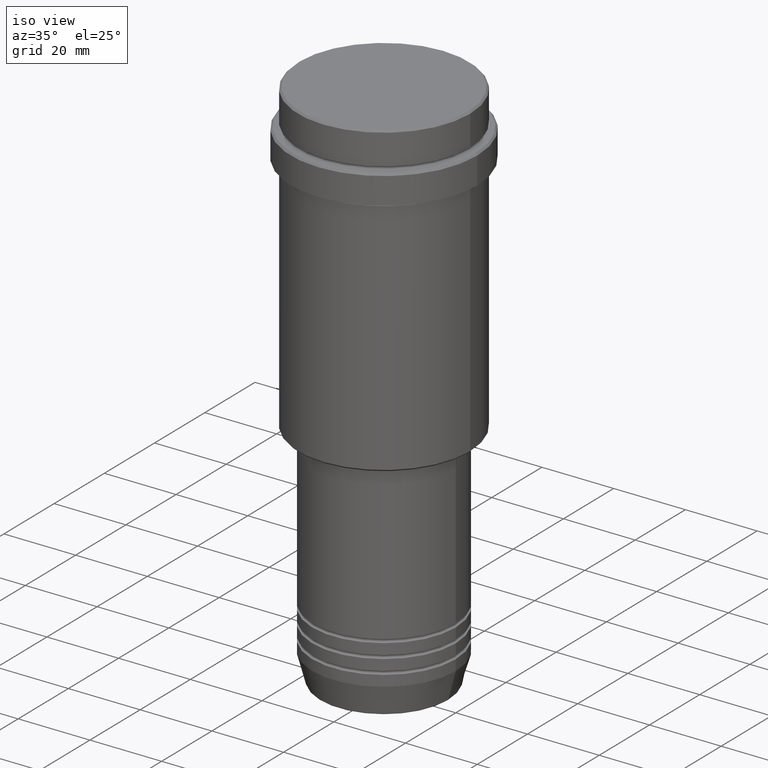
[diagram: clean part render]
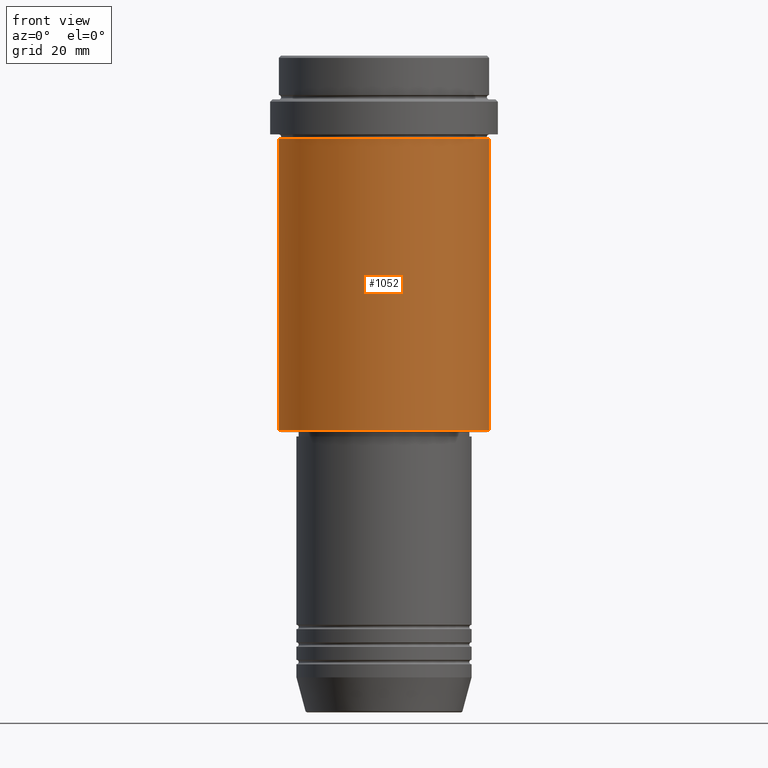
[diagram: tour spotlight — one face highlighted and labeled with its STEP entity id]
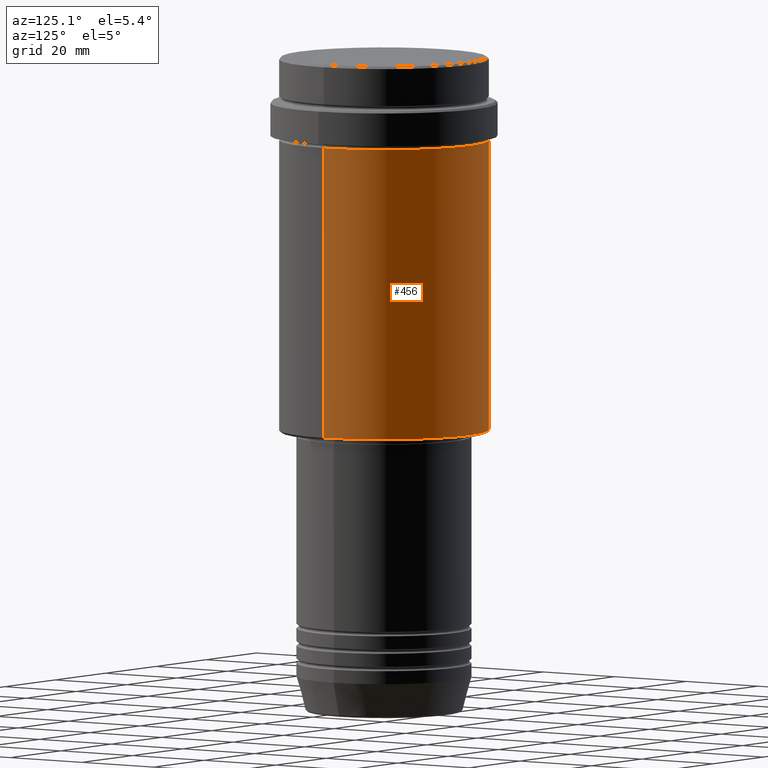
[diagram: tour spotlight — one face highlighted and labeled with its STEP entity id]
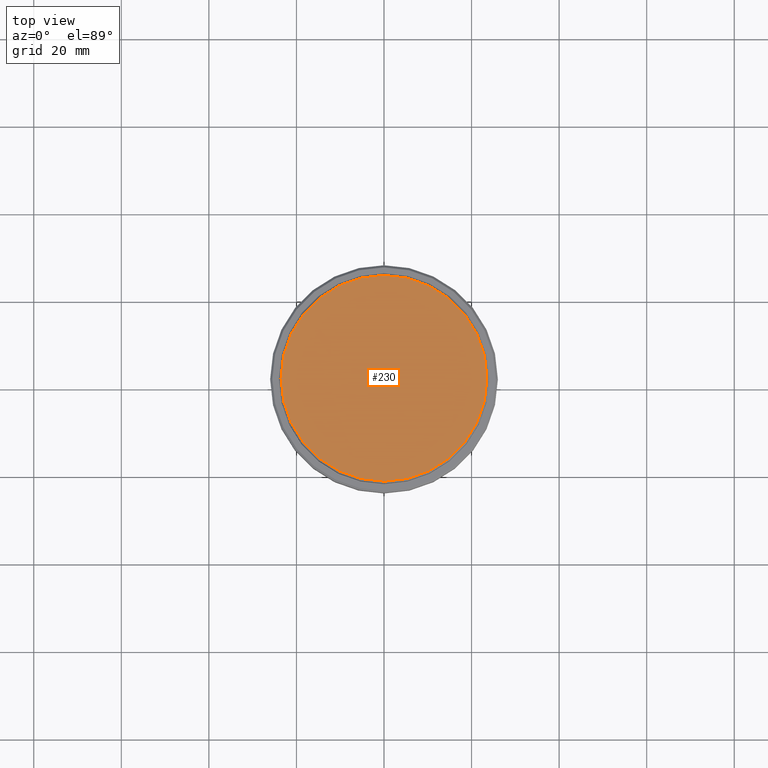
[diagram: tour spotlight — one face highlighted and labeled with its STEP entity id]
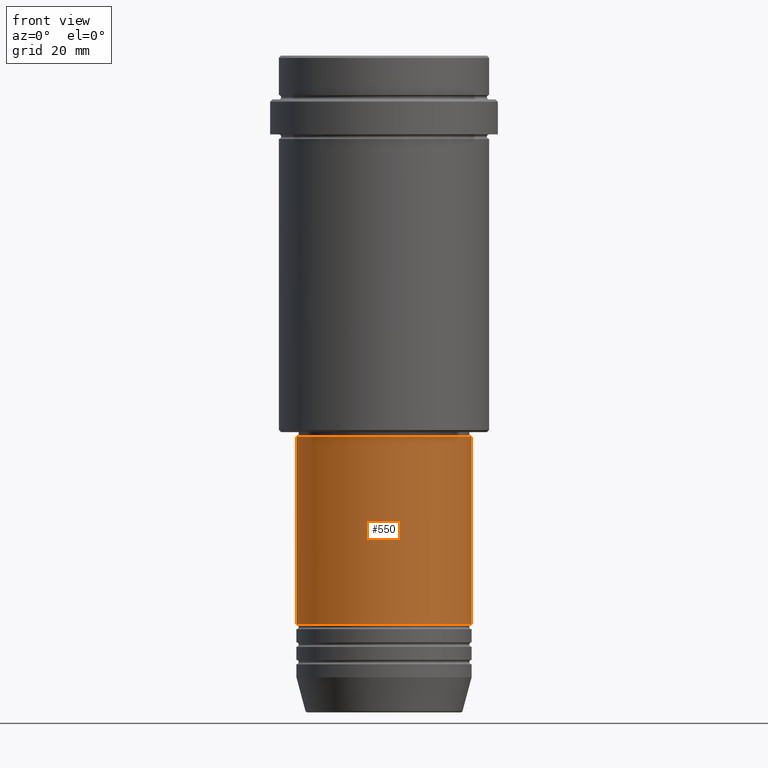
[diagram: tour spotlight — one face highlighted and labeled with its STEP entity id]
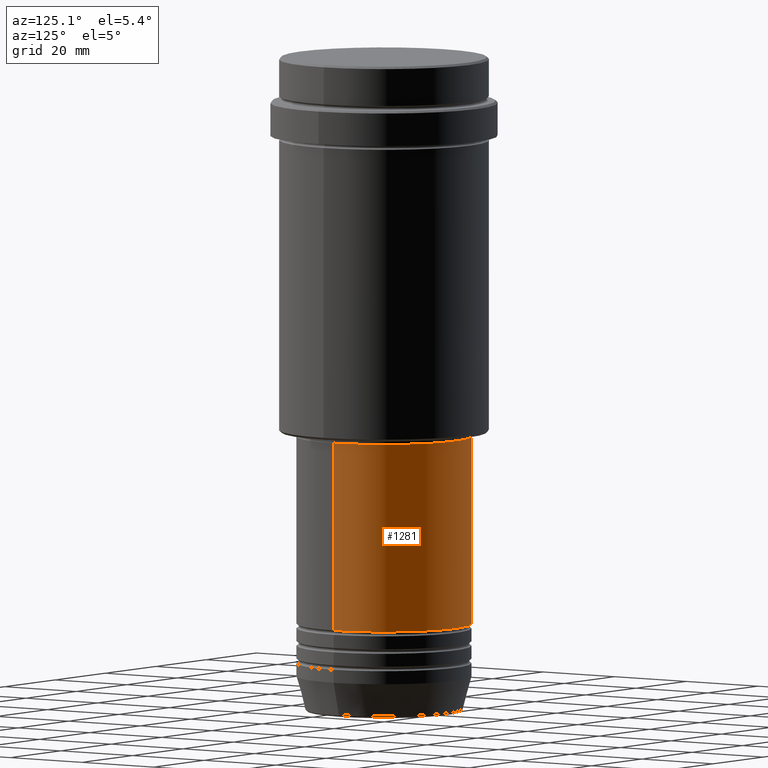
[diagram: tour spotlight — one face highlighted and labeled with its STEP entity id]
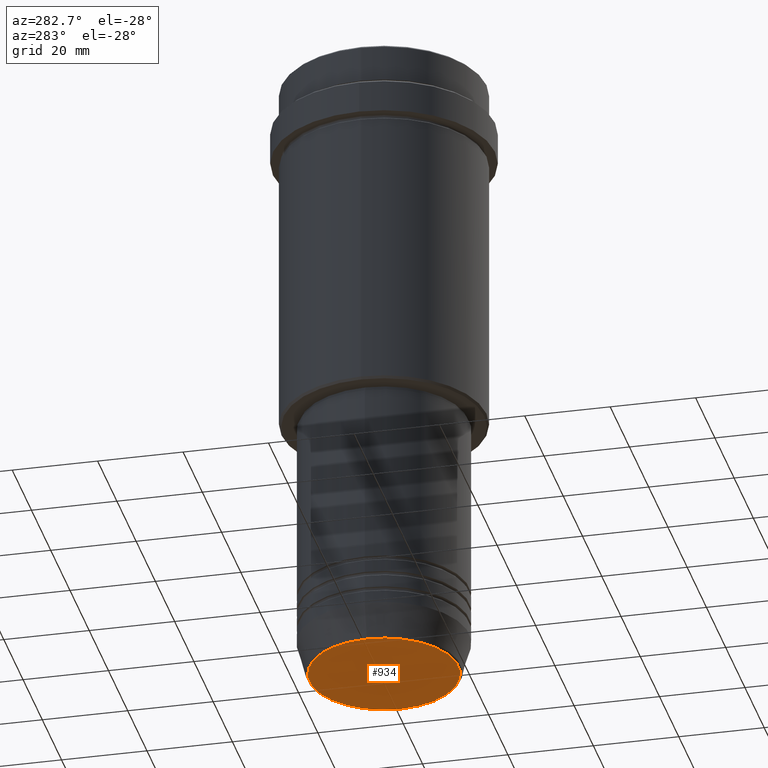
[diagram: tour spotlight — one face highlighted and labeled with its STEP entity id]
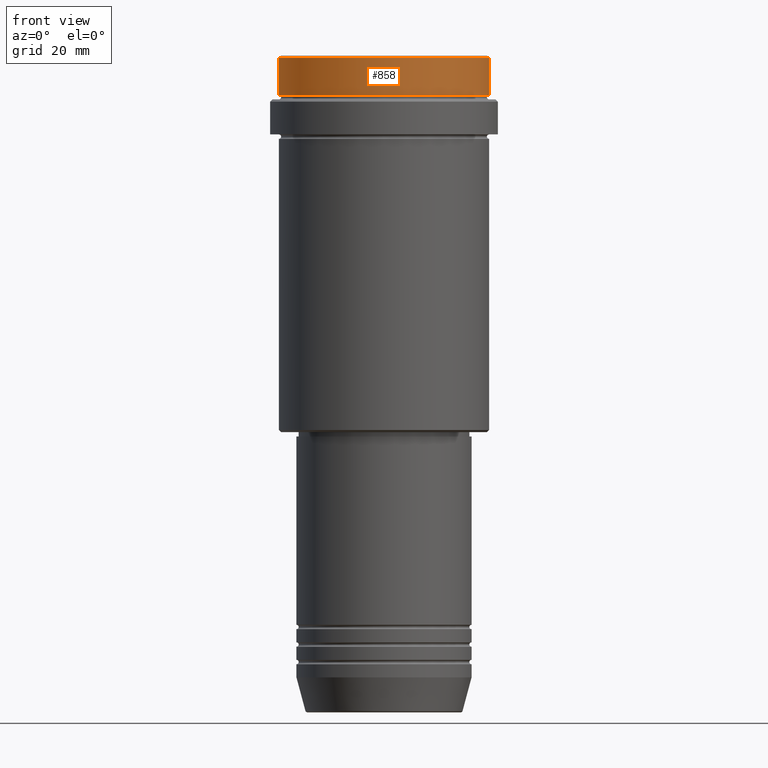
[diagram: tour spotlight — one face highlighted and labeled with its STEP entity id]
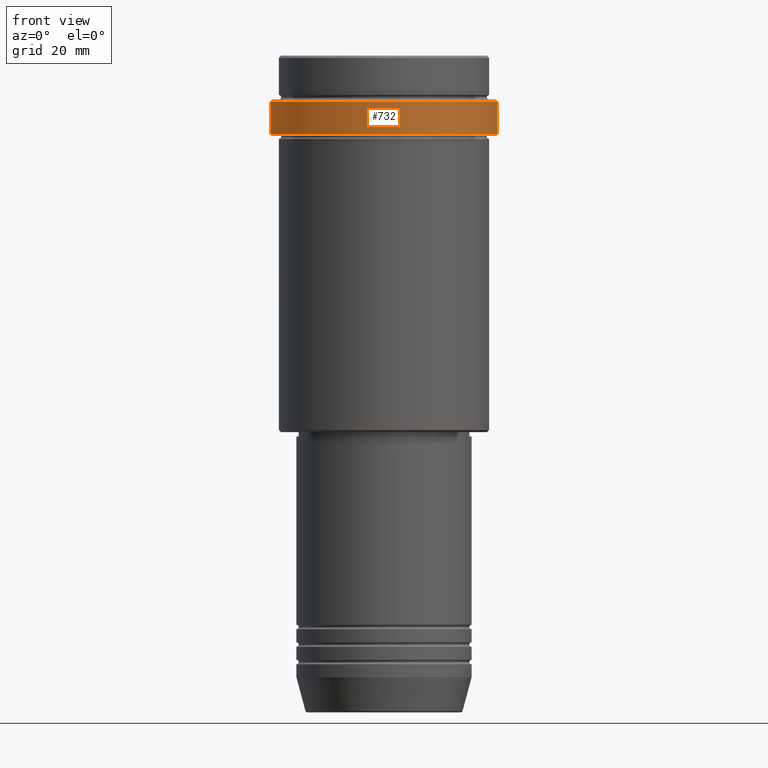
[diagram: tour spotlight — one face highlighted and labeled with its STEP entity id]
A machine part: a face-by-face anatomy tour. The part has 52 B-rep faces; the first image is the clean iso view, then the 8 largest visible faces are spotlighted one at a time (largest first), each with its STEP entity span.

Face 1 — front view, entity #1052. In plain terms, the highlighted cylindrical surface (partial cylindrical patch) has radius 24 mm, axis along (-0, -0, 1).
Definition (entity closure, byte-faithful):
#49 = ORIENTED_EDGE ( 'NONE', *, *, #285, .F. ) ;
#51 = EDGE_CURVE ( 'NONE', #517, #610, #1229, .T. ) ;
#53 = DIRECTION ( 'NONE',  ( -0.000000000000000000, -0.000000000000000000, 1.000000000000000000 ) ) ;
#66 = CARTESIAN_POINT ( 'NONE',  ( -23.99999999999999289, 2.939152317953647106E-15, -85.49999999999998579 ) ) ;
#92 = CYLINDRICAL_SURFACE ( 'NONE', #1135, 23.99999999999999289 ) ;
#104 = CARTESIAN_POINT ( 'NONE',  ( 0.000000000000000000, 0.000000000000000000, 0.000000000000000000 ) ) ;
#173 = CARTESIAN_POINT ( 'NONE',  ( -23.99999999999998579, 2.939152317953646711E-15, -19.00000000000000711 ) ) ;
#201 = DIRECTION ( 'NONE',  ( -0.000000000000000000, -0.000000000000000000, 1.000000000000000000 ) ) ;
#234 = VERTEX_POINT ( 'NONE', #66 ) ;
#285 = EDGE_CURVE ( 'NONE', #234, #517, #1355, .T. ) ;
#294 = DIRECTION ( 'NONE',  ( 1.000000000000000000, 0.000000000000000000, 0.000000000000000000 ) ) ;
#304 = DIRECTION ( 'NONE',  ( -0.000000000000000000, -0.000000000000000000, 1.000000000000000000 ) ) ;
#305 = CARTESIAN_POINT ( 'NONE',  ( 23.99999999999998579, 0.000000000000000000, -19.00000000000000711 ) ) ;
#383 = CARTESIAN_POINT ( 'NONE',  ( -23.99999999999999289, 2.939152317953647106E-15, 0.000000000000000000 ) ) ;
#388 = EDGE_LOOP ( 'NONE', ( #49, #775, #1156, #1292 ) ) ;
#440 = DIRECTION ( 'NONE',  ( -1.000000000000000000, 0.000000000000000000, 0.000000000000000000 ) ) ;
#479 = VECTOR ( 'NONE', #813, 1000.000000000000000 ) ;
#517 = VERTEX_POINT ( 'NONE', #173 ) ;
#610 = VERTEX_POINT ( 'NONE', #305 ) ;
#618 = AXIS2_PLACEMENT_3D ( 'NONE', #1266, #304, #294 ) ;
#621 = AXIS2_PLACEMENT_3D ( 'NONE', #897, #1330, #440 ) ;
#661 = CARTESIAN_POINT ( 'NONE',  ( 23.99999999999999289, 0.000000000000000000, 0.000000000000000000 ) ) ;
#700 = VECTOR ( 'NONE', #53, 1000.000000000000000 ) ;
#758 = FACE_OUTER_BOUND ( 'NONE', #388, .T. ) ;
#775 = ORIENTED_EDGE ( 'NONE', *, *, #1343, .T. ) ;
#813 = DIRECTION ( 'NONE',  ( -0.000000000000000000, -0.000000000000000000, 1.000000000000000000 ) ) ;
#897 = CARTESIAN_POINT ( 'NONE',  ( 0.000000000000000000, 0.000000000000000000, -85.49999999999998579 ) ) ;
#1000 = CARTESIAN_POINT ( 'NONE',  ( 23.99999999999999289, 0.000000000000000000, -85.49999999999998579 ) ) ;
#1039 = LINE ( 'NONE', #661, #700 ) ;
#1052 = ADVANCED_FACE ( 'NONE', ( #758 ), #92, .T. ) ;
#1064 = VERTEX_POINT ( 'NONE', #1000 ) ;
#1131 = EDGE_CURVE ( 'NONE', #1064, #610, #1039, .T. ) ;
#1135 = AXIS2_PLACEMENT_3D ( 'NONE', #104, #201, #1199 ) ;
#1156 = ORIENTED_EDGE ( 'NONE', *, *, #1131, .T. ) ;
#1199 = DIRECTION ( 'NONE',  ( 1.000000000000000000, 0.000000000000000000, 0.000000000000000000 ) ) ;
#1229 = CIRCLE ( 'NONE', #618, 23.99999999999998579 ) ;
#1232 = CIRCLE ( 'NONE', #621, 23.99999999999999289 ) ;
#1266 = CARTESIAN_POINT ( 'NONE',  ( 0.000000000000000000, 0.000000000000000000, -19.00000000000000711 ) ) ;
#1292 = ORIENTED_EDGE ( 'NONE', *, *, #51, .F. ) ;
#1330 = DIRECTION ( 'NONE',  ( -0.000000000000000000, -0.000000000000000000, 1.000000000000000000 ) ) ;
#1343 = EDGE_CURVE ( 'NONE', #234, #1064, #1232, .T. ) ;
#1355 = LINE ( 'NONE', #383, #479 ) ;

Face 2 — auxiliary view, entity #456. In plain terms, the highlighted cylindrical surface (partial cylindrical patch) has radius 24 mm, axis along (-0, -0, 1).
Definition (entity closure, byte-faithful):
#53 = DIRECTION ( 'NONE',  ( -0.000000000000000000, -0.000000000000000000, 1.000000000000000000 ) ) ;
#66 = CARTESIAN_POINT ( 'NONE',  ( -23.99999999999999289, 2.939152317953647106E-15, -85.49999999999998579 ) ) ;
#82 = DIRECTION ( 'NONE',  ( -0.000000000000000000, -0.000000000000000000, 1.000000000000000000 ) ) ;
#128 = DIRECTION ( 'NONE',  ( -0.000000000000000000, -0.000000000000000000, 1.000000000000000000 ) ) ;
#173 = CARTESIAN_POINT ( 'NONE',  ( -23.99999999999998579, 2.939152317953646711E-15, -19.00000000000000711 ) ) ;
#195 = ORIENTED_EDGE ( 'NONE', *, *, #285, .T. ) ;
#212 = CIRCLE ( 'NONE', #872, 23.99999999999999289 ) ;
#234 = VERTEX_POINT ( 'NONE', #66 ) ;
#285 = EDGE_CURVE ( 'NONE', #234, #517, #1355, .T. ) ;
#305 = CARTESIAN_POINT ( 'NONE',  ( 23.99999999999998579, 0.000000000000000000, -19.00000000000000711 ) ) ;
#307 = CARTESIAN_POINT ( 'NONE',  ( 0.000000000000000000, 0.000000000000000000, -85.49999999999998579 ) ) ;
#316 = DIRECTION ( 'NONE',  ( -0.000000000000000000, -0.000000000000000000, 1.000000000000000000 ) ) ;
#344 = ORIENTED_EDGE ( 'NONE', *, *, #977, .T. ) ;
#367 = CARTESIAN_POINT ( 'NONE',  ( 0.000000000000000000, 0.000000000000000000, 0.000000000000000000 ) ) ;
#383 = CARTESIAN_POINT ( 'NONE',  ( -23.99999999999999289, 2.939152317953647106E-15, 0.000000000000000000 ) ) ;
#413 = ORIENTED_EDGE ( 'NONE', *, *, #1131, .F. ) ;
#456 = ADVANCED_FACE ( 'NONE', ( #1018 ), #1128, .T. ) ;
#458 = DIRECTION ( 'NONE',  ( 1.000000000000000000, 0.000000000000000000, 0.000000000000000000 ) ) ;
#479 = VECTOR ( 'NONE', #813, 1000.000000000000000 ) ;
#517 = VERTEX_POINT ( 'NONE', #173 ) ;
#610 = VERTEX_POINT ( 'NONE', #305 ) ;
#628 = DIRECTION ( 'NONE',  ( 1.000000000000000000, 0.000000000000000000, 0.000000000000000000 ) ) ;
#661 = CARTESIAN_POINT ( 'NONE',  ( 23.99999999999999289, 0.000000000000000000, 0.000000000000000000 ) ) ;
#700 = VECTOR ( 'NONE', #53, 1000.000000000000000 ) ;
#743 = DIRECTION ( 'NONE',  ( -1.000000000000000000, 0.000000000000000000, 0.000000000000000000 ) ) ;
#761 = EDGE_LOOP ( 'NONE', ( #344, #195, #1022, #413 ) ) ;
#791 = CARTESIAN_POINT ( 'NONE',  ( 0.000000000000000000, 0.000000000000000000, -19.00000000000000711 ) ) ;
#813 = DIRECTION ( 'NONE',  ( -0.000000000000000000, -0.000000000000000000, 1.000000000000000000 ) ) ;
#872 = AXIS2_PLACEMENT_3D ( 'NONE', #307, #316, #743 ) ;
#977 = EDGE_CURVE ( 'NONE', #1064, #234, #212, .T. ) ;
#1000 = CARTESIAN_POINT ( 'NONE',  ( 23.99999999999999289, 0.000000000000000000, -85.49999999999998579 ) ) ;
#1009 = AXIS2_PLACEMENT_3D ( 'NONE', #791, #82, #628 ) ;
#1018 = FACE_OUTER_BOUND ( 'NONE', #761, .T. ) ;
#1022 = ORIENTED_EDGE ( 'NONE', *, *, #1387, .F. ) ;
#1039 = LINE ( 'NONE', #661, #700 ) ;
#1064 = VERTEX_POINT ( 'NONE', #1000 ) ;
#1128 = CYLINDRICAL_SURFACE ( 'NONE', #1363, 23.99999999999999289 ) ;
#1131 = EDGE_CURVE ( 'NONE', #1064, #610, #1039, .T. ) ;
#1355 = LINE ( 'NONE', #383, #479 ) ;
#1363 = AXIS2_PLACEMENT_3D ( 'NONE', #367, #128, #458 ) ;
#1387 = EDGE_CURVE ( 'NONE', #610, #517, #1414, .T. ) ;
#1414 = CIRCLE ( 'NONE', #1009, 23.99999999999998579 ) ;

Face 3 — top view, entity #230. In plain terms, the highlighted planar face has unit normal (0, -0, 1).
Definition (entity closure, byte-faithful):
#31 = EDGE_CURVE ( 'NONE', #692, #237, #572, .T. ) ;
#54 = PLANE ( 'NONE',  #300 ) ;
#77 = DIRECTION ( 'NONE',  ( 0.000000000000000000, -0.000000000000000000, 1.000000000000000000 ) ) ;
#138 = DIRECTION ( 'NONE',  ( -0.000000000000000000, -0.000000000000000000, 1.000000000000000000 ) ) ;
#151 = DIRECTION ( 'NONE',  ( 1.000000000000000000, 0.000000000000000000, 0.000000000000000000 ) ) ;
#192 = ORIENTED_EDGE ( 'NONE', *, *, #31, .T. ) ;
#230 = ADVANCED_FACE ( 'NONE', ( #809 ), #54, .T. ) ;
#237 = VERTEX_POINT ( 'NONE', #587 ) ;
#300 = AXIS2_PLACEMENT_3D ( 'NONE', #712, #77, #612 ) ;
#371 = CARTESIAN_POINT ( 'NONE',  ( 0.000000000000000000, 0.000000000000000000, 0.000000000000000000 ) ) ;
#572 = CIRCLE ( 'NONE', #1300, 23.49999999999996447 ) ;
#587 = CARTESIAN_POINT ( 'NONE',  ( 23.49999999999996447, 2.908536147974961346E-15, 0.000000000000000000 ) ) ;
#612 = DIRECTION ( 'NONE',  ( 1.000000000000000000, 0.000000000000000000, 0.000000000000000000 ) ) ;
#623 = CIRCLE ( 'NONE', #846, 23.49999999999996447 ) ;
#650 = EDGE_CURVE ( 'NONE', #237, #692, #623, .T. ) ;
#692 = VERTEX_POINT ( 'NONE', #1352 ) ;
#712 = CARTESIAN_POINT ( 'NONE',  ( 0.000000000000000000, 0.000000000000000000, 0.000000000000000000 ) ) ;
#809 = FACE_OUTER_BOUND ( 'NONE', #1332, .T. ) ;
#828 = ORIENTED_EDGE ( 'NONE', *, *, #650, .T. ) ;
#846 = AXIS2_PLACEMENT_3D ( 'NONE', #371, #138, #151 ) ;
#927 = CARTESIAN_POINT ( 'NONE',  ( 0.000000000000000000, 0.000000000000000000, 0.000000000000000000 ) ) ;
#1243 = DIRECTION ( 'NONE',  ( 1.000000000000000000, 0.000000000000000000, 0.000000000000000000 ) ) ;
#1300 = AXIS2_PLACEMENT_3D ( 'NONE', #927, #1357, #1243 ) ;
#1332 = EDGE_LOOP ( 'NONE', ( #192, #828 ) ) ;
#1352 = CARTESIAN_POINT ( 'NONE',  ( -23.49999999999996447, 0.000000000000000000, 0.000000000000000000 ) ) ;
#1357 = DIRECTION ( 'NONE',  ( -0.000000000000000000, -0.000000000000000000, 1.000000000000000000 ) ) ;

Face 4 — front view, entity #550. In plain terms, the highlighted cylindrical surface (partial cylindrical patch) has radius 20 mm, axis along (-0, -0, 1).
Definition (entity closure, byte-faithful):
#20 = AXIS2_PLACEMENT_3D ( 'NONE', #890, #1217, #571 ) ;
#35 = CARTESIAN_POINT ( 'NONE',  ( -20.00000000000000000, 2.449293598294706513E-15, -129.9999999999998863 ) ) ;
#56 = ORIENTED_EDGE ( 'NONE', *, *, #182, .F. ) ;
#59 = VERTEX_POINT ( 'NONE', #1048 ) ;
#69 = DIRECTION ( 'NONE',  ( -0.000000000000000000, -0.000000000000000000, 1.000000000000000000 ) ) ;
#142 = CARTESIAN_POINT ( 'NONE',  ( 0.000000000000000000, 0.000000000000000000, -129.9999999999998863 ) ) ;
#167 = CARTESIAN_POINT ( 'NONE',  ( -20.00000000000000000, 2.449293598294706513E-15, 0.000000000000000000 ) ) ;
#181 = ORIENTED_EDGE ( 'NONE', *, *, #545, .F. ) ;
#182 = EDGE_CURVE ( 'NONE', #59, #1373, #1051, .T. ) ;
#228 = ORIENTED_EDGE ( 'NONE', *, *, #711, .T. ) ;
#249 = VERTEX_POINT ( 'NONE', #624 ) ;
#272 = FACE_OUTER_BOUND ( 'NONE', #964, .T. ) ;
#308 = EDGE_CURVE ( 'NONE', #1368, #249, #1276, .T. ) ;
#373 = VECTOR ( 'NONE', #1141, 1000.000000000000000 ) ;
#447 = DIRECTION ( 'NONE',  ( 1.000000000000000000, 0.000000000000000000, 0.000000000000000000 ) ) ;
#461 = VECTOR ( 'NONE', #1030, 1000.000000000000000 ) ;
#485 = CYLINDRICAL_SURFACE ( 'NONE', #1080, 20.00000000000000000 ) ;
#492 = LINE ( 'NONE', #939, #373 ) ;
#510 = DIRECTION ( 'NONE',  ( 1.000000000000000000, 0.000000000000000000, 0.000000000000000000 ) ) ;
#545 = EDGE_CURVE ( 'NONE', #1368, #59, #1138, .T. ) ;
#550 = ADVANCED_FACE ( 'NONE', ( #272 ), #485, .T. ) ;
#571 = DIRECTION ( 'NONE',  ( 1.000000000000000000, 0.000000000000000000, 0.000000000000000000 ) ) ;
#580 = DIRECTION ( 'NONE',  ( -0.000000000000000000, -0.000000000000000000, 1.000000000000000000 ) ) ;
#624 = CARTESIAN_POINT ( 'NONE',  ( 20.00000000000000000, 0.000000000000000000, -129.9999999999998863 ) ) ;
#652 = ORIENTED_EDGE ( 'NONE', *, *, #308, .T. ) ;
#711 = EDGE_CURVE ( 'NONE', #249, #1373, #492, .T. ) ;
#869 = AXIS2_PLACEMENT_3D ( 'NONE', #142, #580, #447 ) ;
#890 = CARTESIAN_POINT ( 'NONE',  ( 0.000000000000000000, 0.000000000000000000, -87.00000000000000000 ) ) ;
#939 = CARTESIAN_POINT ( 'NONE',  ( 20.00000000000000000, 0.000000000000000000, 0.000000000000000000 ) ) ;
#964 = EDGE_LOOP ( 'NONE', ( #181, #652, #228, #56 ) ) ;
#1030 = DIRECTION ( 'NONE',  ( -0.000000000000000000, -0.000000000000000000, 1.000000000000000000 ) ) ;
#1048 = CARTESIAN_POINT ( 'NONE',  ( -20.00000000000000000, 2.449293598294706513E-15, -87.00000000000000000 ) ) ;
#1051 = CIRCLE ( 'NONE', #20, 20.00000000000000000 ) ;
#1080 = AXIS2_PLACEMENT_3D ( 'NONE', #1251, #69, #510 ) ;
#1138 = LINE ( 'NONE', #167, #461 ) ;
#1141 = DIRECTION ( 'NONE',  ( -0.000000000000000000, -0.000000000000000000, 1.000000000000000000 ) ) ;
#1217 = DIRECTION ( 'NONE',  ( -0.000000000000000000, -0.000000000000000000, 1.000000000000000000 ) ) ;
#1220 = CARTESIAN_POINT ( 'NONE',  ( 20.00000000000000000, 0.000000000000000000, -87.00000000000000000 ) ) ;
#1251 = CARTESIAN_POINT ( 'NONE',  ( 0.000000000000000000, 0.000000000000000000, 0.000000000000000000 ) ) ;
#1276 = CIRCLE ( 'NONE', #869, 20.00000000000000000 ) ;
#1368 = VERTEX_POINT ( 'NONE', #35 ) ;
#1373 = VERTEX_POINT ( 'NONE', #1220 ) ;

Face 5 — auxiliary view, entity #1281. In plain terms, the highlighted cylindrical surface (partial cylindrical patch) has radius 20 mm, axis along (-0, -0, 1).
Definition (entity closure, byte-faithful):
#35 = CARTESIAN_POINT ( 'NONE',  ( -20.00000000000000000, 2.449293598294706513E-15, -129.9999999999998863 ) ) ;
#59 = VERTEX_POINT ( 'NONE', #1048 ) ;
#106 = EDGE_LOOP ( 'NONE', ( #446, #778, #549, #1350 ) ) ;
#162 = CIRCLE ( 'NONE', #1027, 20.00000000000000000 ) ;
#167 = CARTESIAN_POINT ( 'NONE',  ( -20.00000000000000000, 2.449293598294706513E-15, 0.000000000000000000 ) ) ;
#249 = VERTEX_POINT ( 'NONE', #624 ) ;
#292 = CYLINDRICAL_SURFACE ( 'NONE', #1360, 20.00000000000000000 ) ;
#314 = CARTESIAN_POINT ( 'NONE',  ( 0.000000000000000000, 0.000000000000000000, 0.000000000000000000 ) ) ;
#319 = CIRCLE ( 'NONE', #502, 20.00000000000000000 ) ;
#373 = VECTOR ( 'NONE', #1141, 1000.000000000000000 ) ;
#382 = DIRECTION ( 'NONE',  ( -0.000000000000000000, -0.000000000000000000, 1.000000000000000000 ) ) ;
#446 = ORIENTED_EDGE ( 'NONE', *, *, #1329, .T. ) ;
#461 = VECTOR ( 'NONE', #1030, 1000.000000000000000 ) ;
#487 = DIRECTION ( 'NONE',  ( 1.000000000000000000, 0.000000000000000000, 0.000000000000000000 ) ) ;
#492 = LINE ( 'NONE', #939, #373 ) ;
#502 = AXIS2_PLACEMENT_3D ( 'NONE', #1280, #986, #1195 ) ;
#503 = FACE_OUTER_BOUND ( 'NONE', #106, .T. ) ;
#522 = DIRECTION ( 'NONE',  ( 1.000000000000000000, 0.000000000000000000, 0.000000000000000000 ) ) ;
#545 = EDGE_CURVE ( 'NONE', #1368, #59, #1138, .T. ) ;
#549 = ORIENTED_EDGE ( 'NONE', *, *, #1142, .F. ) ;
#624 = CARTESIAN_POINT ( 'NONE',  ( 20.00000000000000000, 0.000000000000000000, -129.9999999999998863 ) ) ;
#711 = EDGE_CURVE ( 'NONE', #249, #1373, #492, .T. ) ;
#740 = DIRECTION ( 'NONE',  ( -0.000000000000000000, -0.000000000000000000, 1.000000000000000000 ) ) ;
#778 = ORIENTED_EDGE ( 'NONE', *, *, #545, .T. ) ;
#939 = CARTESIAN_POINT ( 'NONE',  ( 20.00000000000000000, 0.000000000000000000, 0.000000000000000000 ) ) ;
#986 = DIRECTION ( 'NONE',  ( -0.000000000000000000, -0.000000000000000000, 1.000000000000000000 ) ) ;
#1027 = AXIS2_PLACEMENT_3D ( 'NONE', #1144, #382, #487 ) ;
#1030 = DIRECTION ( 'NONE',  ( -0.000000000000000000, -0.000000000000000000, 1.000000000000000000 ) ) ;
#1048 = CARTESIAN_POINT ( 'NONE',  ( -20.00000000000000000, 2.449293598294706513E-15, -87.00000000000000000 ) ) ;
#1138 = LINE ( 'NONE', #167, #461 ) ;
#1141 = DIRECTION ( 'NONE',  ( -0.000000000000000000, -0.000000000000000000, 1.000000000000000000 ) ) ;
#1142 = EDGE_CURVE ( 'NONE', #1373, #59, #162, .T. ) ;
#1144 = CARTESIAN_POINT ( 'NONE',  ( 0.000000000000000000, 0.000000000000000000, -87.00000000000000000 ) ) ;
#1195 = DIRECTION ( 'NONE',  ( 1.000000000000000000, 0.000000000000000000, 0.000000000000000000 ) ) ;
#1220 = CARTESIAN_POINT ( 'NONE',  ( 20.00000000000000000, 0.000000000000000000, -87.00000000000000000 ) ) ;
#1280 = CARTESIAN_POINT ( 'NONE',  ( 0.000000000000000000, 0.000000000000000000, -129.9999999999998863 ) ) ;
#1281 = ADVANCED_FACE ( 'NONE', ( #503 ), #292, .T. ) ;
#1329 = EDGE_CURVE ( 'NONE', #249, #1368, #319, .T. ) ;
#1350 = ORIENTED_EDGE ( 'NONE', *, *, #711, .F. ) ;
#1360 = AXIS2_PLACEMENT_3D ( 'NONE', #314, #740, #522 ) ;
#1368 = VERTEX_POINT ( 'NONE', #35 ) ;
#1373 = VERTEX_POINT ( 'NONE', #1220 ) ;

Face 6 — auxiliary view, entity #934. In plain terms, the highlighted planar face has unit normal (0, -0, 1).
Definition (entity closure, byte-faithful):
#60 = DIRECTION ( 'NONE',  ( 1.000000000000000000, 0.000000000000000000, 0.000000000000000000 ) ) ;
#220 = DIRECTION ( 'NONE',  ( 0.000000000000000000, -0.000000000000000000, 1.000000000000000000 ) ) ;
#241 = ORIENTED_EDGE ( 'NONE', *, *, #1200, .T. ) ;
#277 = AXIS2_PLACEMENT_3D ( 'NONE', #527, #515, #975 ) ;
#333 = FACE_OUTER_BOUND ( 'NONE', #1286, .T. ) ;
#341 = CARTESIAN_POINT ( 'NONE',  ( 0.000000000000000000, 0.000000000000000000, -150.0000000000000284 ) ) ;
#443 = CARTESIAN_POINT ( 'NONE',  ( 17.47274296656153325, 0.000000000000000000, -150.0000000000000284 ) ) ;
#478 = CIRCLE ( 'NONE', #867, 17.47274296656153325 ) ;
#515 = DIRECTION ( 'NONE',  ( 0.000000000000000000, 0.000000000000000000, -1.000000000000000000 ) ) ;
#527 = CARTESIAN_POINT ( 'NONE',  ( 0.000000000000000000, 0.000000000000000000, -150.0000000000000284 ) ) ;
#562 = VERTEX_POINT ( 'NONE', #824 ) ;
#651 = DIRECTION ( 'NONE',  ( 1.000000000000000000, 0.000000000000000000, 0.000000000000000000 ) ) ;
#769 = DIRECTION ( 'NONE',  ( 0.000000000000000000, 0.000000000000000000, -1.000000000000000000 ) ) ;
#824 = CARTESIAN_POINT ( 'NONE',  ( -17.47274296656153325, 2.169366823916867714E-15, -150.0000000000000284 ) ) ;
#847 = AXIS2_PLACEMENT_3D ( 'NONE', #1074, #220, #651 ) ;
#867 = AXIS2_PLACEMENT_3D ( 'NONE', #341, #769, #60 ) ;
#887 = CIRCLE ( 'NONE', #277, 17.47274296656153325 ) ;
#905 = ORIENTED_EDGE ( 'NONE', *, *, #1133, .T. ) ;
#934 = ADVANCED_FACE ( 'NONE', ( #333 ), #1192, .F. ) ;
#975 = DIRECTION ( 'NONE',  ( 1.000000000000000000, 0.000000000000000000, 0.000000000000000000 ) ) ;
#1036 = VERTEX_POINT ( 'NONE', #443 ) ;
#1074 = CARTESIAN_POINT ( 'NONE',  ( 0.000000000000000000, 0.000000000000000000, -150.0000000000000284 ) ) ;
#1133 = EDGE_CURVE ( 'NONE', #562, #1036, #478, .T. ) ;
#1192 = PLANE ( 'NONE',  #847 ) ;
#1200 = EDGE_CURVE ( 'NONE', #1036, #562, #887, .T. ) ;
#1286 = EDGE_LOOP ( 'NONE', ( #241, #905 ) ) ;

Face 7 — front view, entity #858. In plain terms, the highlighted cylindrical surface (partial cylindrical patch) has radius 24 mm, axis along (-0, -0, 1).
Definition (entity closure, byte-faithful):
#67 = CIRCLE ( 'NONE', #1182, 23.99999999999998579 ) ;
#93 = DIRECTION ( 'NONE',  ( -0.000000000000000000, -0.000000000000000000, 1.000000000000000000 ) ) ;
#101 = ORIENTED_EDGE ( 'NONE', *, *, #110, .T. ) ;
#110 = EDGE_CURVE ( 'NONE', #878, #1056, #67, .T. ) ;
#152 = EDGE_CURVE ( 'NONE', #218, #663, #938, .T. ) ;
#154 = DIRECTION ( 'NONE',  ( -0.000000000000000000, -0.000000000000000000, 1.000000000000000000 ) ) ;
#187 = AXIS2_PLACEMENT_3D ( 'NONE', #923, #216, #204 ) ;
#204 = DIRECTION ( 'NONE',  ( 1.000000000000000000, 0.000000000000000000, 0.000000000000000000 ) ) ;
#216 = DIRECTION ( 'NONE',  ( -0.000000000000000000, -0.000000000000000000, 1.000000000000000000 ) ) ;
#218 = VERTEX_POINT ( 'NONE', #1316 ) ;
#265 = DIRECTION ( 'NONE',  ( 1.000000000000000000, 0.000000000000000000, 0.000000000000000000 ) ) ;
#348 = VECTOR ( 'NONE', #548, 1000.000000000000000 ) ;
#366 = CARTESIAN_POINT ( 'NONE',  ( 0.000000000000000000, 0.000000000000000000, -0.5000000000000419664 ) ) ;
#434 = CARTESIAN_POINT ( 'NONE',  ( 0.000000000000000000, 0.000000000000000000, -8.999999999999998224 ) ) ;
#482 = EDGE_CURVE ( 'NONE', #1056, #218, #1235, .T. ) ;
#486 = CYLINDRICAL_SURFACE ( 'NONE', #187, 23.99999999999999289 ) ;
#542 = CARTESIAN_POINT ( 'NONE',  ( -23.99999999999999289, 2.939152317953647106E-15, 0.000000000000000000 ) ) ;
#548 = DIRECTION ( 'NONE',  ( -0.000000000000000000, -0.000000000000000000, 1.000000000000000000 ) ) ;
#609 = FACE_OUTER_BOUND ( 'NONE', #837, .T. ) ;
#637 = LINE ( 'NONE', #542, #348 ) ;
#641 = AXIS2_PLACEMENT_3D ( 'NONE', #366, #882, #265 ) ;
#663 = VERTEX_POINT ( 'NONE', #1105 ) ;
#686 = CARTESIAN_POINT ( 'NONE',  ( 23.99999999999999289, 0.000000000000000000, 0.000000000000000000 ) ) ;
#837 = EDGE_LOOP ( 'NONE', ( #1101, #101, #1271, #1371 ) ) ;
#854 = DIRECTION ( 'NONE',  ( 1.000000000000000000, 0.000000000000000000, 0.000000000000000000 ) ) ;
#858 = ADVANCED_FACE ( 'NONE', ( #609 ), #486, .T. ) ;
#873 = CARTESIAN_POINT ( 'NONE',  ( -23.99999999999998579, 2.939152317953646711E-15, -8.999999999999998224 ) ) ;
#878 = VERTEX_POINT ( 'NONE', #873 ) ;
#882 = DIRECTION ( 'NONE',  ( 0.000000000000000000, 0.000000000000000000, -1.000000000000000000 ) ) ;
#923 = CARTESIAN_POINT ( 'NONE',  ( 0.000000000000000000, 0.000000000000000000, 0.000000000000000000 ) ) ;
#926 = EDGE_CURVE ( 'NONE', #878, #663, #637, .T. ) ;
#938 = CIRCLE ( 'NONE', #641, 23.99999999999999289 ) ;
#1056 = VERTEX_POINT ( 'NONE', #1190 ) ;
#1101 = ORIENTED_EDGE ( 'NONE', *, *, #926, .F. ) ;
#1105 = CARTESIAN_POINT ( 'NONE',  ( -23.99999999999999289, 2.939152317953647106E-15, -0.5000000000000419664 ) ) ;
#1182 = AXIS2_PLACEMENT_3D ( 'NONE', #434, #93, #854 ) ;
#1190 = CARTESIAN_POINT ( 'NONE',  ( 23.99999999999998579, 0.000000000000000000, -8.999999999999998224 ) ) ;
#1235 = LINE ( 'NONE', #686, #1302 ) ;
#1271 = ORIENTED_EDGE ( 'NONE', *, *, #482, .T. ) ;
#1302 = VECTOR ( 'NONE', #154, 1000.000000000000000 ) ;
#1316 = CARTESIAN_POINT ( 'NONE',  ( 23.99999999999999289, 0.000000000000000000, -0.5000000000000419664 ) ) ;
#1371 = ORIENTED_EDGE ( 'NONE', *, *, #152, .T. ) ;

Face 8 — front view, entity #732. In plain terms, the highlighted cylindrical surface (partial cylindrical patch) has radius 26 mm, axis along (-0, -0, 1).
Definition (entity closure, byte-faithful):
#2 = DIRECTION ( 'NONE',  ( 1.000000000000000000, 0.000000000000000000, 0.000000000000000000 ) ) ;
#12 = VERTEX_POINT ( 'NONE', #614 ) ;
#58 = FACE_OUTER_BOUND ( 'NONE', #1041, .T. ) ;
#65 = CIRCLE ( 'NONE', #299, 25.99999999999998579 ) ;
#114 = CARTESIAN_POINT ( 'NONE',  ( 25.99999999999998579, 0.000000000000000000, 0.000000000000000000 ) ) ;
#143 = AXIS2_PLACEMENT_3D ( 'NONE', #169, #629, #1035 ) ;
#169 = CARTESIAN_POINT ( 'NONE',  ( 0.000000000000000000, 0.000000000000000000, 0.000000000000000000 ) ) ;
#178 = CYLINDRICAL_SURFACE ( 'NONE', #143, 25.99999999999998579 ) ;
#184 = CIRCLE ( 'NONE', #843, 25.99999999999998579 ) ;
#255 = VERTEX_POINT ( 'NONE', #1059 ) ;
#264 = EDGE_CURVE ( 'NONE', #918, #400, #805, .T. ) ;
#299 = AXIS2_PLACEMENT_3D ( 'NONE', #635, #746, #422 ) ;
#352 = EDGE_CURVE ( 'NONE', #918, #255, #184, .T. ) ;
#400 = VERTEX_POINT ( 'NONE', #1099 ) ;
#422 = DIRECTION ( 'NONE',  ( 1.000000000000000000, 0.000000000000000000, 0.000000000000000000 ) ) ;
#442 = DIRECTION ( 'NONE',  ( -0.000000000000000000, -0.000000000000000000, 1.000000000000000000 ) ) ;
#614 = CARTESIAN_POINT ( 'NONE',  ( 25.99999999999998579, 0.000000000000000000, -10.50000000000002665 ) ) ;
#629 = DIRECTION ( 'NONE',  ( -0.000000000000000000, -0.000000000000000000, 1.000000000000000000 ) ) ;
#635 = CARTESIAN_POINT ( 'NONE',  ( 0.000000000000000000, 0.000000000000000000, -10.50000000000002665 ) ) ;
#732 = ADVANCED_FACE ( 'NONE', ( #58 ), #178, .T. ) ;
#746 = DIRECTION ( 'NONE',  ( 0.000000000000000000, 0.000000000000000000, -1.000000000000000000 ) ) ;
#805 = LINE ( 'NONE', #1237, #1095 ) ;
#843 = AXIS2_PLACEMENT_3D ( 'NONE', #1230, #442, #2 ) ;
#875 = ORIENTED_EDGE ( 'NONE', *, *, #881, .T. ) ;
#881 = EDGE_CURVE ( 'NONE', #255, #12, #1174, .T. ) ;
#918 = VERTEX_POINT ( 'NONE', #1410 ) ;
#1035 = DIRECTION ( 'NONE',  ( 1.000000000000000000, 0.000000000000000000, 0.000000000000000000 ) ) ;
#1041 = EDGE_LOOP ( 'NONE', ( #1381, #1301, #875, #1127 ) ) ;
#1059 = CARTESIAN_POINT ( 'NONE',  ( 25.99999999999998579, 0.000000000000000000, -18.00000000000000355 ) ) ;
#1095 = VECTOR ( 'NONE', #1242, 1000.000000000000000 ) ;
#1099 = CARTESIAN_POINT ( 'NONE',  ( -25.99999999999998579, 3.184081677783116613E-15, -10.50000000000002665 ) ) ;
#1127 = ORIENTED_EDGE ( 'NONE', *, *, #1249, .T. ) ;
#1174 = LINE ( 'NONE', #114, #1252 ) ;
#1230 = CARTESIAN_POINT ( 'NONE',  ( 0.000000000000000000, 0.000000000000000000, -18.00000000000000355 ) ) ;
#1237 = CARTESIAN_POINT ( 'NONE',  ( -25.99999999999998579, 3.184081677783116613E-15, 0.000000000000000000 ) ) ;
#1242 = DIRECTION ( 'NONE',  ( -0.000000000000000000, -0.000000000000000000, 1.000000000000000000 ) ) ;
#1249 = EDGE_CURVE ( 'NONE', #12, #400, #65, .T. ) ;
#1252 = VECTOR ( 'NONE', #1308, 1000.000000000000000 ) ;
#1301 = ORIENTED_EDGE ( 'NONE', *, *, #352, .T. ) ;
#1308 = DIRECTION ( 'NONE',  ( -0.000000000000000000, -0.000000000000000000, 1.000000000000000000 ) ) ;
#1381 = ORIENTED_EDGE ( 'NONE', *, *, #264, .F. ) ;
#1410 = CARTESIAN_POINT ( 'NONE',  ( -25.99999999999998579, 3.184081677783116613E-15, -18.00000000000000355 ) ) ;